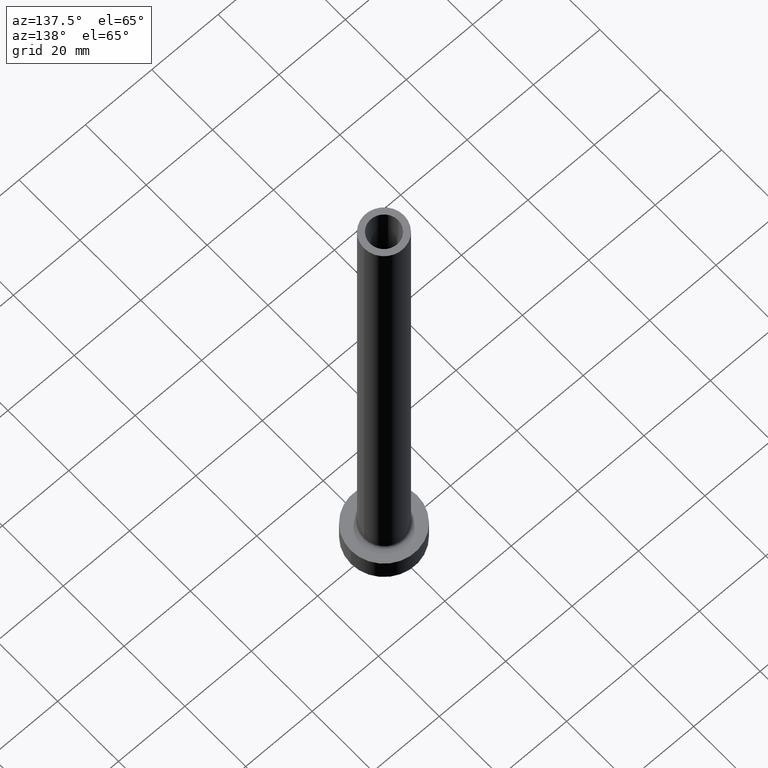
[diagram: clean part render]
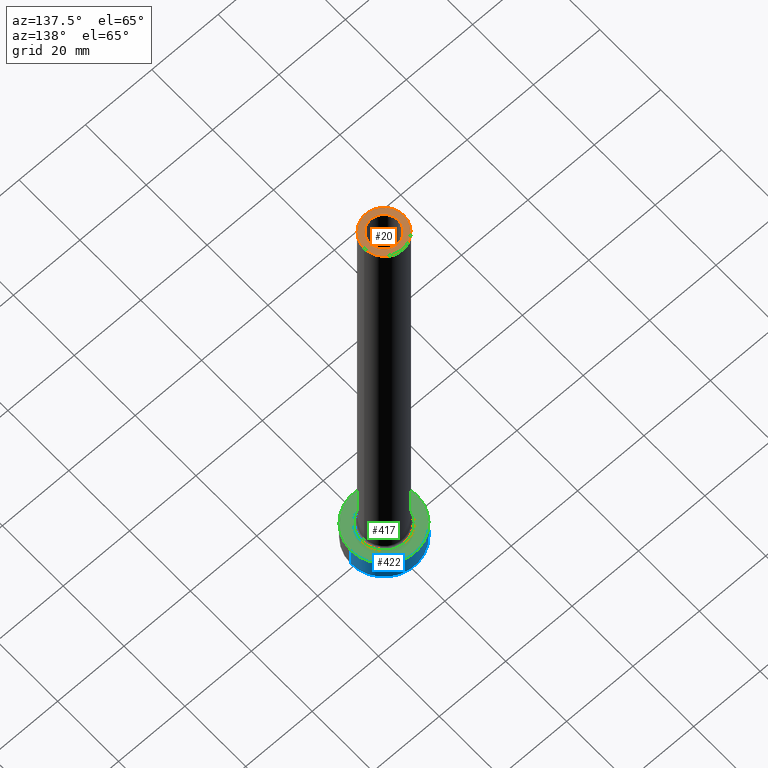
[diagram: same view with three faces highlighted in distinct colors, each labeled with its STEP entity id]
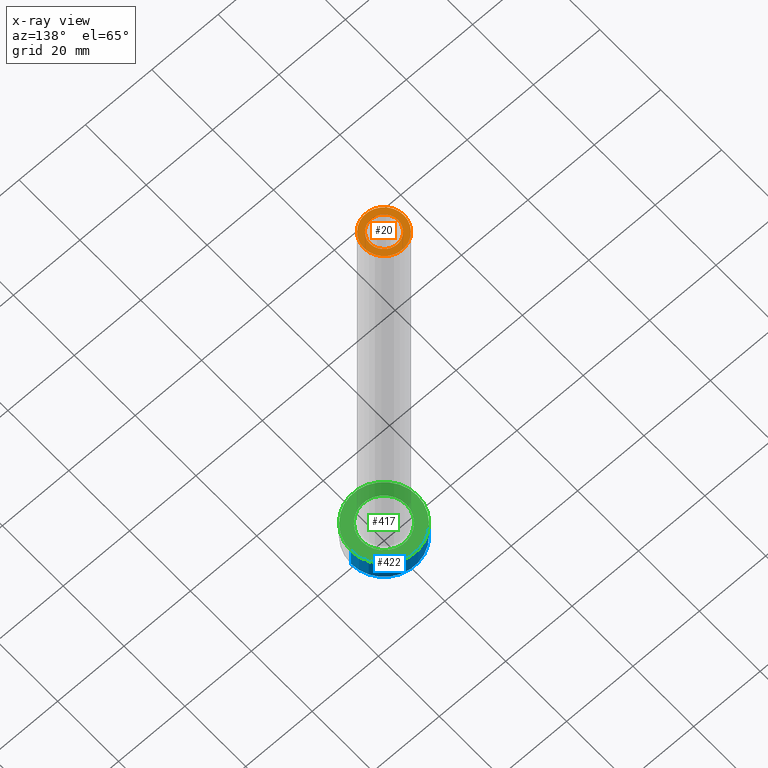
[diagram: x-ray of the same camera — body ghosted, the three highlighted faces saturated]
A machine part, auxiliary view with three faces highlighted in distinct colors.
The next image is the same camera in x-ray (body ghosted, the three faces saturated) — at least one of them is partly hidden behind the body in this view.
Their STEP definitions:

[orange] entity #20 — the highlighted planar face has unit normal (0, 0, 1).
#3 = CARTESIAN_POINT ( 'NONE',  ( 0.000000000000000000, 0.000000000000000000, 160.0000000000000000 ) ) ;
#4 = AXIS2_PLACEMENT_3D ( 'NONE', #316, #354, #39 ) ;
#20 = ADVANCED_FACE ( 'NONE', ( #108, #396 ), #104, .T. ) ;
#38 = EDGE_CURVE ( 'NONE', #395, #329, #199, .T. ) ;
#39 = DIRECTION ( 'NONE',  ( 1.000000000000000000, 0.000000000000000000, 0.000000000000000000 ) ) ;
#49 = VERTEX_POINT ( 'NONE', #74 ) ;
#55 = EDGE_LOOP ( 'NONE', ( #397, #436 ) ) ;
#70 = CARTESIAN_POINT ( 'NONE',  ( 0.000000000000000000, 0.000000000000000000, 160.0000000000000000 ) ) ;
#72 = EDGE_CURVE ( 'NONE', #318, #49, #211, .T. ) ;
#74 = CARTESIAN_POINT ( 'NONE',  ( 4.250000000000000000, 5.204748896376249713E-16, 160.0000000000000000 ) ) ;
#77 = DIRECTION ( 'NONE',  ( 0.000000000000000000, 0.000000000000000000, 1.000000000000000000 ) ) ;
#103 = EDGE_CURVE ( 'NONE', #49, #318, #383, .T. ) ;
#104 = PLANE ( 'NONE',  #424 ) ;
#108 = FACE_BOUND ( 'NONE', #437, .T. ) ;
#118 = EDGE_CURVE ( 'NONE', #329, #395, #207, .T. ) ;
#137 = DIRECTION ( 'NONE',  ( 1.000000000000000000, 0.000000000000000000, 0.000000000000000000 ) ) ;
#147 = AXIS2_PLACEMENT_3D ( 'NONE', #186, #77, #426 ) ;
#152 = ORIENTED_EDGE ( 'NONE', *, *, #103, .F. ) ;
#173 = DIRECTION ( 'NONE',  ( 0.000000000000000000, 0.000000000000000000, 1.000000000000000000 ) ) ;
#176 = DIRECTION ( 'NONE',  ( 1.000000000000000000, 0.000000000000000000, 0.000000000000000000 ) ) ;
#186 = CARTESIAN_POINT ( 'NONE',  ( 0.000000000000000000, 0.000000000000000000, 160.0000000000000000 ) ) ;
#195 = ORIENTED_EDGE ( 'NONE', *, *, #72, .F. ) ;
#199 = CIRCLE ( 'NONE', #147, 6.000000000000000888 ) ;
#207 = CIRCLE ( 'NONE', #4, 6.000000000000000888 ) ;
#209 = CARTESIAN_POINT ( 'NONE',  ( -6.000000000000000888, 0.000000000000000000, 160.0000000000000000 ) ) ;
#211 = CIRCLE ( 'NONE', #441, 4.250000000000000000 ) ;
#213 = DIRECTION ( 'NONE',  ( 1.000000000000000000, 0.000000000000000000, -0.000000000000000000 ) ) ;
#252 = CARTESIAN_POINT ( 'NONE',  ( 0.000000000000000000, 0.000000000000000000, 160.0000000000000000 ) ) ;
#269 = CARTESIAN_POINT ( 'NONE',  ( -4.250000000000000000, 0.000000000000000000, 160.0000000000000000 ) ) ;
#302 = AXIS2_PLACEMENT_3D ( 'NONE', #252, #390, #176 ) ;
#316 = CARTESIAN_POINT ( 'NONE',  ( 0.000000000000000000, 0.000000000000000000, 160.0000000000000000 ) ) ;
#318 = VERTEX_POINT ( 'NONE', #269 ) ;
#329 = VERTEX_POINT ( 'NONE', #449 ) ;
#354 = DIRECTION ( 'NONE',  ( 0.000000000000000000, 0.000000000000000000, 1.000000000000000000 ) ) ;
#383 = CIRCLE ( 'NONE', #302, 4.250000000000000000 ) ;
#385 = DIRECTION ( 'NONE',  ( 0.000000000000000000, 0.000000000000000000, 1.000000000000000000 ) ) ;
#390 = DIRECTION ( 'NONE',  ( 0.000000000000000000, 0.000000000000000000, 1.000000000000000000 ) ) ;
#395 = VERTEX_POINT ( 'NONE', #209 ) ;
#396 = FACE_OUTER_BOUND ( 'NONE', #55, .T. ) ;
#397 = ORIENTED_EDGE ( 'NONE', *, *, #38, .T. ) ;
#424 = AXIS2_PLACEMENT_3D ( 'NONE', #70, #173, #213 ) ;
#426 = DIRECTION ( 'NONE',  ( 1.000000000000000000, 0.000000000000000000, 0.000000000000000000 ) ) ;
#436 = ORIENTED_EDGE ( 'NONE', *, *, #118, .T. ) ;
#437 = EDGE_LOOP ( 'NONE', ( #195, #152 ) ) ;
#441 = AXIS2_PLACEMENT_3D ( 'NONE', #3, #385, #137 ) ;
#449 = CARTESIAN_POINT ( 'NONE',  ( 6.000000000000000888, 7.347880794884120722E-16, 160.0000000000000000 ) ) ;

[blue] entity #422 — the highlighted cylindrical surface (partial cylindrical patch) has radius 10 mm, axis along (-0, -0, -1).
#1 = DIRECTION ( 'NONE',  ( -0.000000000000000000, -0.000000000000000000, -1.000000000000000000 ) ) ;
#24 = EDGE_CURVE ( 'NONE', #227, #41, #65, .T. ) ;
#37 = VERTEX_POINT ( 'NONE', #148 ) ;
#41 = VERTEX_POINT ( 'NONE', #423 ) ;
#45 = CIRCLE ( 'NONE', #432, 10.00000000000000000 ) ;
#46 = CARTESIAN_POINT ( 'NONE',  ( 10.00000000000000000, 1.224646799147353256E-15, 7.000000000000000000 ) ) ;
#65 = LINE ( 'NONE', #219, #345 ) ;
#78 = ORIENTED_EDGE ( 'NONE', *, *, #169, .F. ) ;
#79 = DIRECTION ( 'NONE',  ( 0.000000000000000000, 0.000000000000000000, 1.000000000000000000 ) ) ;
#84 = CARTESIAN_POINT ( 'NONE',  ( 0.000000000000000000, 0.000000000000000000, 0.000000000000000000 ) ) ;
#136 = CYLINDRICAL_SURFACE ( 'NONE', #200, 10.00000000000000000 ) ;
#148 = CARTESIAN_POINT ( 'NONE',  ( -10.00000000000000000, 0.000000000000000000, 7.000000000000000000 ) ) ;
#150 = ORIENTED_EDGE ( 'NONE', *, *, #174, .T. ) ;
#166 = CIRCLE ( 'NONE', #343, 10.00000000000000000 ) ;
#169 = EDGE_CURVE ( 'NONE', #37, #290, #317, .T. ) ;
#174 = EDGE_CURVE ( 'NONE', #41, #290, #166, .T. ) ;
#177 = EDGE_LOOP ( 'NONE', ( #330, #320, #150, #78 ) ) ;
#183 = CARTESIAN_POINT ( 'NONE',  ( 0.000000000000000000, 0.000000000000000000, 7.000000000000000000 ) ) ;
#185 = FACE_OUTER_BOUND ( 'NONE', #177, .T. ) ;
#187 = DIRECTION ( 'NONE',  ( 1.000000000000000000, 0.000000000000000000, 0.000000000000000000 ) ) ;
#190 = EDGE_CURVE ( 'NONE', #227, #37, #45, .T. ) ;
#200 = AXIS2_PLACEMENT_3D ( 'NONE', #183, #458, #388 ) ;
#219 = CARTESIAN_POINT ( 'NONE',  ( 10.00000000000000000, 1.224646799147353256E-15, 7.000000000000000000 ) ) ;
#227 = VERTEX_POINT ( 'NONE', #46 ) ;
#290 = VERTEX_POINT ( 'NONE', #407 ) ;
#291 = CARTESIAN_POINT ( 'NONE',  ( -10.00000000000000000, 0.000000000000000000, 7.000000000000000000 ) ) ;
#301 = CARTESIAN_POINT ( 'NONE',  ( 0.000000000000000000, 0.000000000000000000, 7.000000000000000000 ) ) ;
#312 = VECTOR ( 'NONE', #433, 1000.000000000000000 ) ;
#317 = LINE ( 'NONE', #291, #312 ) ;
#320 = ORIENTED_EDGE ( 'NONE', *, *, #24, .T. ) ;
#330 = ORIENTED_EDGE ( 'NONE', *, *, #190, .F. ) ;
#343 = AXIS2_PLACEMENT_3D ( 'NONE', #84, #79, #187 ) ;
#345 = VECTOR ( 'NONE', #1, 1000.000000000000000 ) ;
#364 = DIRECTION ( 'NONE',  ( 1.000000000000000000, 0.000000000000000000, 0.000000000000000000 ) ) ;
#388 = DIRECTION ( 'NONE',  ( -1.000000000000000000, 0.000000000000000000, 0.000000000000000000 ) ) ;
#407 = CARTESIAN_POINT ( 'NONE',  ( -10.00000000000000000, 0.000000000000000000, 0.000000000000000000 ) ) ;
#422 = ADVANCED_FACE ( 'NONE', ( #185 ), #136, .T. ) ;
#423 = CARTESIAN_POINT ( 'NONE',  ( 10.00000000000000000, 1.224646799147353256E-15, 0.000000000000000000 ) ) ;
#432 = AXIS2_PLACEMENT_3D ( 'NONE', #301, #435, #364 ) ;
#433 = DIRECTION ( 'NONE',  ( -0.000000000000000000, -0.000000000000000000, -1.000000000000000000 ) ) ;
#435 = DIRECTION ( 'NONE',  ( 0.000000000000000000, 0.000000000000000000, 1.000000000000000000 ) ) ;
#458 = DIRECTION ( 'NONE',  ( -0.000000000000000000, -0.000000000000000000, -1.000000000000000000 ) ) ;

[green] entity #417 — the highlighted planar face has unit normal (0, 0, 1).
#18 = CARTESIAN_POINT ( 'NONE',  ( 0.000000000000000000, 0.000000000000000000, 7.000000000000000000 ) ) ;
#25 = AXIS2_PLACEMENT_3D ( 'NONE', #18, #162, #307 ) ;
#36 = PLANE ( 'NONE',  #130 ) ;
#37 = VERTEX_POINT ( 'NONE', #148 ) ;
#45 = CIRCLE ( 'NONE', #432, 10.00000000000000000 ) ;
#46 = CARTESIAN_POINT ( 'NONE',  ( 10.00000000000000000, 1.224646799147353256E-15, 7.000000000000000000 ) ) ;
#58 = CARTESIAN_POINT ( 'NONE',  ( 0.000000000000000000, 0.000000000000000000, 7.000000000000000000 ) ) ;
#62 = EDGE_CURVE ( 'NONE', #326, #119, #333, .T. ) ;
#93 = AXIS2_PLACEMENT_3D ( 'NONE', #58, #315, #421 ) ;
#106 = DIRECTION ( 'NONE',  ( 1.000000000000000000, 0.000000000000000000, -0.000000000000000000 ) ) ;
#111 = CARTESIAN_POINT ( 'NONE',  ( 0.000000000000000000, 0.000000000000000000, 7.000000000000000000 ) ) ;
#119 = VERTEX_POINT ( 'NONE', #179 ) ;
#130 = AXIS2_PLACEMENT_3D ( 'NONE', #384, #141, #106 ) ;
#141 = DIRECTION ( 'NONE',  ( 0.000000000000000000, 0.000000000000000000, 1.000000000000000000 ) ) ;
#148 = CARTESIAN_POINT ( 'NONE',  ( -10.00000000000000000, 0.000000000000000000, 7.000000000000000000 ) ) ;
#162 = DIRECTION ( 'NONE',  ( -0.000000000000000000, -0.000000000000000000, -1.000000000000000000 ) ) ;
#179 = CARTESIAN_POINT ( 'NONE',  ( 6.700000000000001066, 0.000000000000000000, 7.000000000000006217 ) ) ;
#180 = DIRECTION ( 'NONE',  ( -0.000000000000000000, -0.000000000000000000, -1.000000000000000000 ) ) ;
#190 = EDGE_CURVE ( 'NONE', #227, #37, #45, .T. ) ;
#196 = ORIENTED_EDGE ( 'NONE', *, *, #62, .T. ) ;
#227 = VERTEX_POINT ( 'NONE', #46 ) ;
#229 = CIRCLE ( 'NONE', #25, 6.700000000000001066 ) ;
#261 = EDGE_LOOP ( 'NONE', ( #365, #196 ) ) ;
#270 = EDGE_LOOP ( 'NONE', ( #440, #389 ) ) ;
#272 = FACE_BOUND ( 'NONE', #261, .T. ) ;
#301 = CARTESIAN_POINT ( 'NONE',  ( 0.000000000000000000, 0.000000000000000000, 7.000000000000000000 ) ) ;
#307 = DIRECTION ( 'NONE',  ( 1.000000000000000000, 0.000000000000000000, 0.000000000000000000 ) ) ;
#313 = EDGE_CURVE ( 'NONE', #119, #326, #229, .T. ) ;
#315 = DIRECTION ( 'NONE',  ( 0.000000000000000000, 0.000000000000000000, 1.000000000000000000 ) ) ;
#319 = AXIS2_PLACEMENT_3D ( 'NONE', #111, #180, #349 ) ;
#326 = VERTEX_POINT ( 'NONE', #411 ) ;
#333 = CIRCLE ( 'NONE', #319, 6.700000000000001066 ) ;
#342 = CIRCLE ( 'NONE', #93, 10.00000000000000000 ) ;
#349 = DIRECTION ( 'NONE',  ( 1.000000000000000000, 0.000000000000000000, 0.000000000000000000 ) ) ;
#353 = FACE_OUTER_BOUND ( 'NONE', #270, .T. ) ;
#363 = EDGE_CURVE ( 'NONE', #37, #227, #342, .T. ) ;
#364 = DIRECTION ( 'NONE',  ( 1.000000000000000000, 0.000000000000000000, 0.000000000000000000 ) ) ;
#365 = ORIENTED_EDGE ( 'NONE', *, *, #313, .T. ) ;
#384 = CARTESIAN_POINT ( 'NONE',  ( 0.000000000000000000, 0.000000000000000000, 7.000000000000000000 ) ) ;
#389 = ORIENTED_EDGE ( 'NONE', *, *, #190, .T. ) ;
#411 = CARTESIAN_POINT ( 'NONE',  ( -6.700000000000001066, 8.205133554287267548E-16, 7.000000000000006217 ) ) ;
#417 = ADVANCED_FACE ( 'NONE', ( #272, #353 ), #36, .T. ) ;
#421 = DIRECTION ( 'NONE',  ( 1.000000000000000000, 0.000000000000000000, 0.000000000000000000 ) ) ;
#432 = AXIS2_PLACEMENT_3D ( 'NONE', #301, #435, #364 ) ;
#435 = DIRECTION ( 'NONE',  ( 0.000000000000000000, 0.000000000000000000, 1.000000000000000000 ) ) ;
#440 = ORIENTED_EDGE ( 'NONE', *, *, #363, .T. ) ;